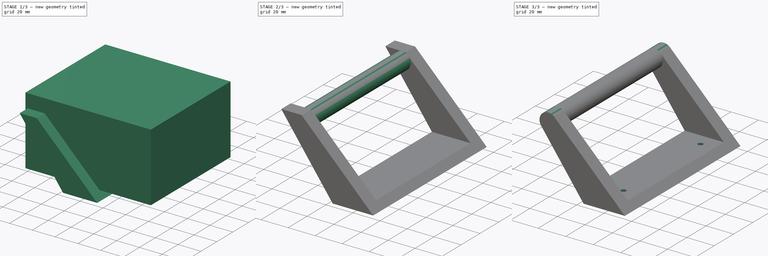
[diagram: build sequence overview — one tinted view per stage of 3, left to right]
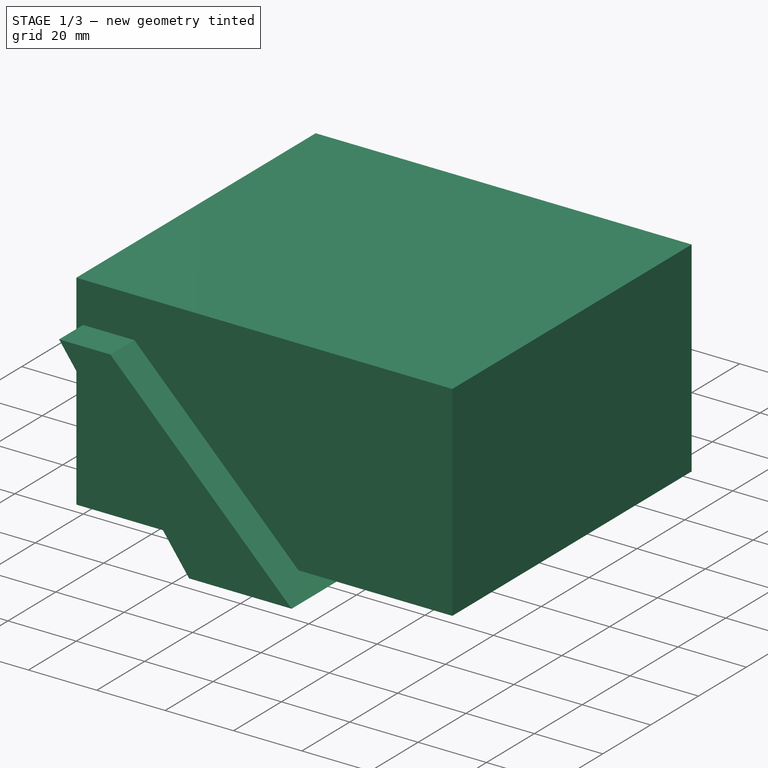
[diagram: stage 1 of 3 — iso view after this stage's code; geometry added in this stage tinted green]
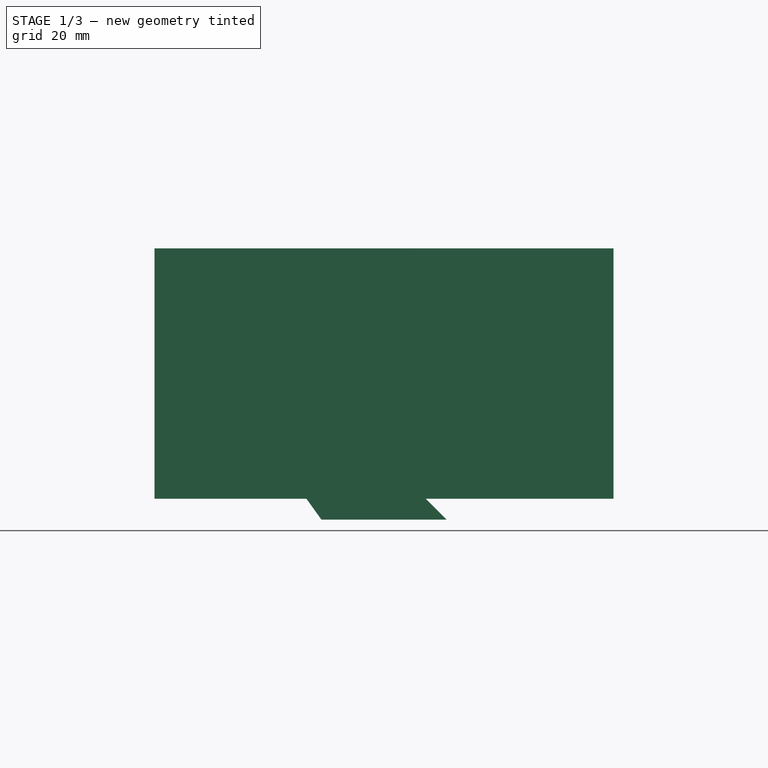
[diagram: stage 1 of 3 — front view after this stage's code; geometry added in this stage tinted green]
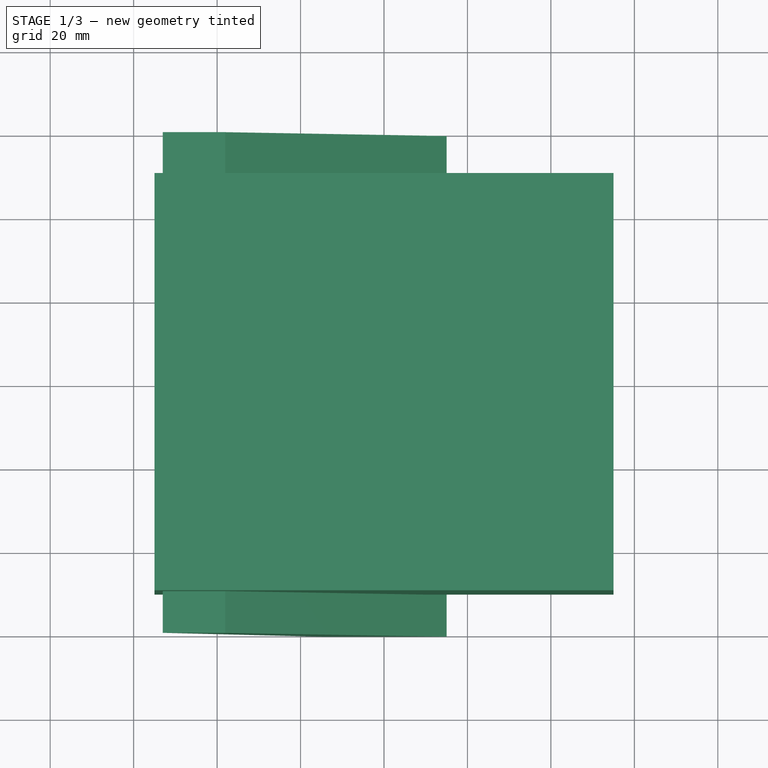
[diagram: stage 1 of 3 — top view after this stage's code; geometry added in this stage tinted green]
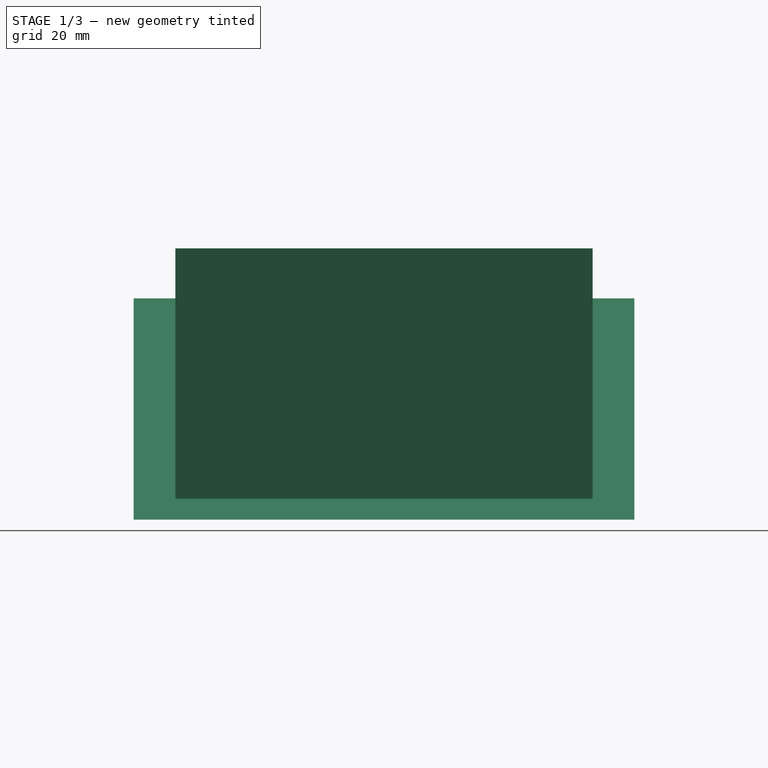
[diagram: stage 1 of 3 — right view after this stage's code; geometry added in this stage tinted green]
FCSTD DOCUMENT  (FreeCAD 0.16R6138 (Git))
Label: poignee
License: CreativeCommons Attribution
LicenseURL: http://creativecommons.org/licenses/by/4.0/
objects: Sketcher::SketchObject×5, PartDesign::Pad×3, PartDesign::Pocket×2, Part::Cut×1
note: 16 computed .brp shape members not serialized (recipe doc carries the construction recipe); baked Part::Feature solids carry a one-line shape summary decoded from their .brp

FEATURE [Sketcher::SketchObject] Sketch
  Placement = pos=(0,0,0) rot=(-1,0,0;4.71239rad)
  sketch-geometry (4):
    g0: LineSegment StartX=-15 StartY=0 StartZ=0 EndX=-53.033 EndY=53.033 EndZ=0
    g1: LineSegment StartX=-53.033 StartY=53.033 StartZ=0 EndX=-38.033 EndY=53.033 EndZ=0
    g2: LineSegment StartX=-38.033 StartY=53.033 StartZ=0 EndX=15 EndY=0 EndZ=0
    g3: LineSegment StartX=15 StartY=0 StartZ=0 EndX=-15 EndY=0 EndZ=0
  constraints (12):
    c: Coincident(g0,g1)
    c: Horizontal(g1)
    c: Coincident(g1,g2)
    c: Coincident(g2,g3)
    c: Coincident(g3,g0)
    c: Horizontal(g3)
    c: Distance(g1) = 15
    c: Symmetric(g0,g2,g-2)
    c: Distance(g3) = 30
    c: PointOnObject(g0,g-1)
    c: Distance(g2) = 75
    c: Angle(g2,g-1) = 0.785398
FEATURE [PartDesign::Pad] Pad
  Length = 120
  Length2 = 100
  Midplane = true
  Placement = pos=(0,0,0) rot=(-1,0,0;4.71239rad)
  Sketch = -> Sketch
  Type = 0
FEATURE [Sketcher::SketchObject] Sketch001
  Placement = pos=(0,0,0) rot=(0.57735,0.57735,0.57735;2.0944rad)
  sketch-geometry (4):
    g0: LineSegment StartX=-50 StartY=65 StartZ=0 EndX=50 EndY=65 EndZ=0
    g1: LineSegment StartX=50 StartY=65 StartZ=0 EndX=50 EndY=5 EndZ=0
    g2: LineSegment StartX=50 StartY=5 StartZ=0 EndX=-50 EndY=5 EndZ=0
    g3: LineSegment StartX=-50 StartY=5 StartZ=0 EndX=-50 EndY=65 EndZ=0
  constraints (12):
    c: Coincident(g0,g1)
    c: Coincident(g1,g2)
    c: Coincident(g2,g3)
    c: Coincident(g3,g0)
    c: Horizontal(g0)
    c: Horizontal(g2)
    c: Vertical(g1)
    c: Vertical(g3)
    c: Symmetric(g2,g1,g-2)
    c: DistanceY(g-1,g1) = 5
    c: Distance(g0) = 100
    c: Distance(g1) = 60
FEATURE [PartDesign::Pad] Pad001
  Length = 110
  Length2 = 100
  Midplane = true
  Placement = pos=(0,0,0) rot=(0.57735,0.57735,0.57735;2.0944rad)
  Sketch = -> Sketch001
  Type = 0
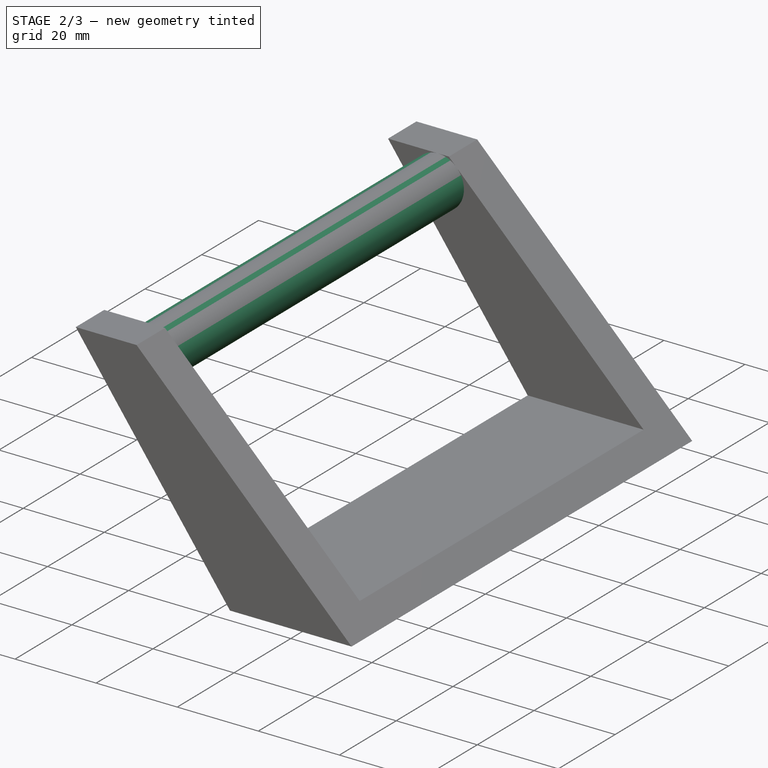
[diagram: stage 2 of 3 — iso view after this stage's code; geometry added in this stage tinted green]
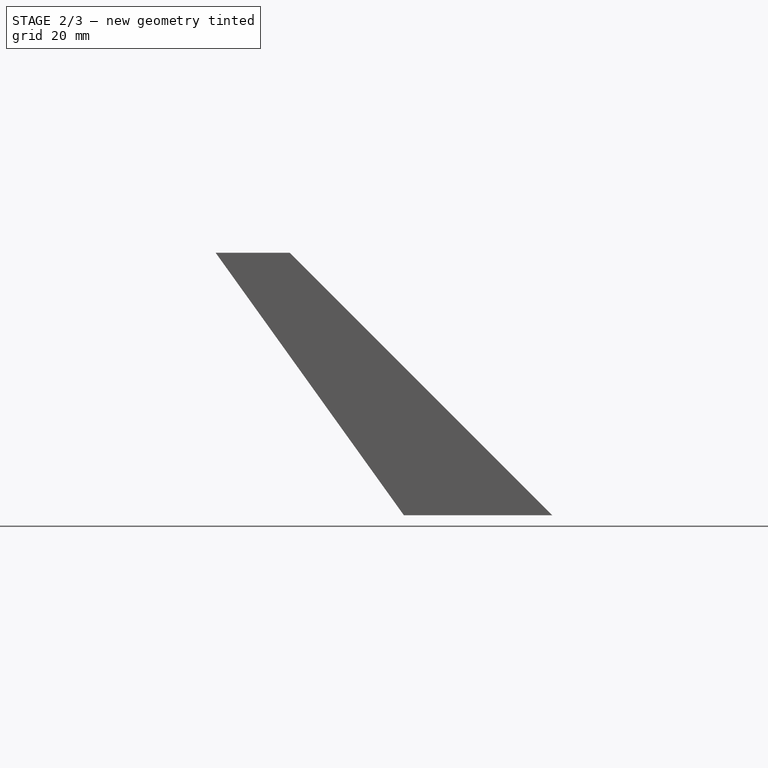
[diagram: stage 2 of 3 — front view after this stage's code; geometry added in this stage tinted green]
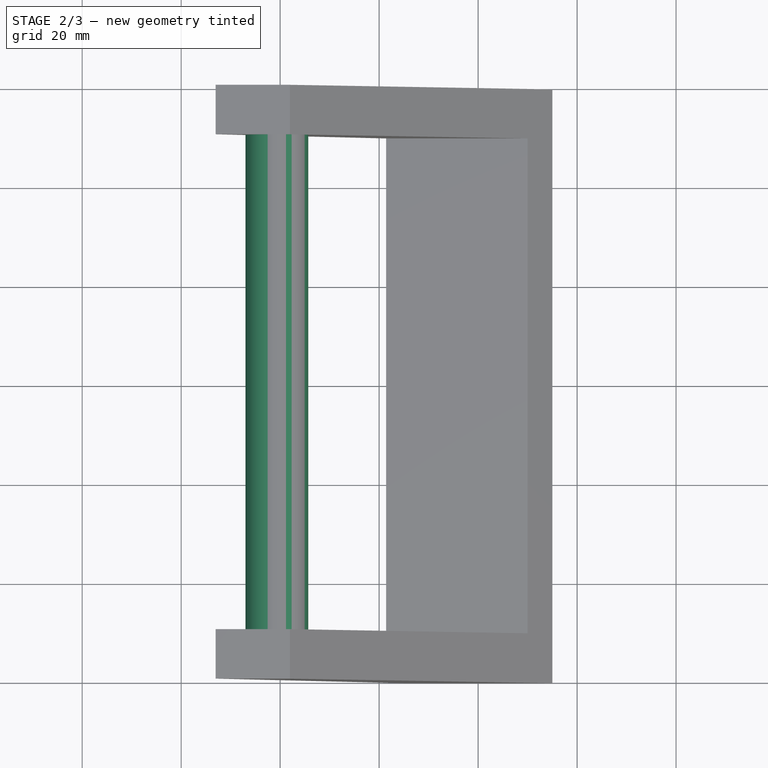
[diagram: stage 2 of 3 — top view after this stage's code; geometry added in this stage tinted green]
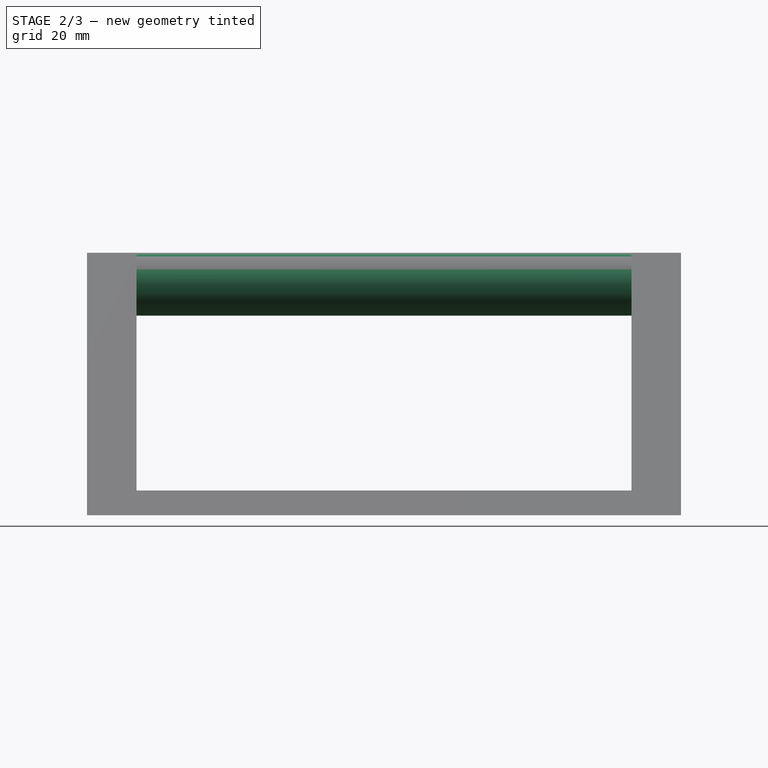
[diagram: stage 2 of 3 — right view after this stage's code; geometry added in this stage tinted green]
FEATURE [Part::Cut] Cut
  Base = -> Pad
  Tool = -> Pad001
FEATURE [Sketcher::SketchObject] Sketch002
  ExternalGeometry = -> [Cut]
  Placement = pos=(0,-60,0) rot=(1,0,0;1.5708rad)
  Support = -> Cut [Face8]
  sketch-geometry (1):
    g0: Circle CenterX=-40.6636 CenterY=46.6823 CenterZ=0 NormalX=0 NormalY=0 NormalZ=1 Radius=6.3507
  constraints (3):
    c: Tangent(g0,g-3)
    c: Tangent(g0,g-4)
    c: Tangent(g0,g-5)
FEATURE [PartDesign::Pad] Pad002
  Length = 120
  Length2 = 100
  Reversed = true
  Sketch = -> Sketch002
  Type = 0
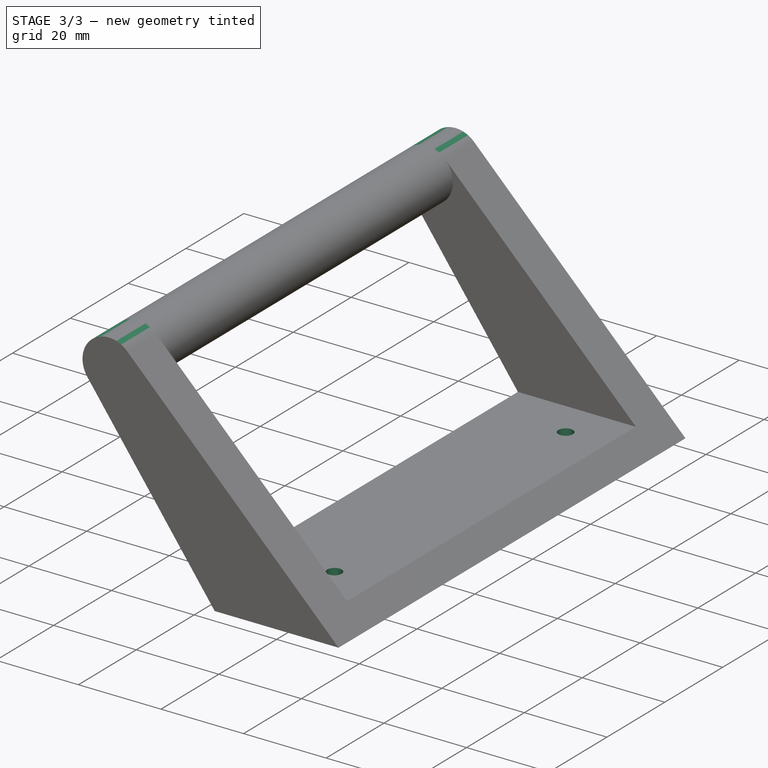
[diagram: stage 3 of 3 — iso view after this stage's code; geometry added in this stage tinted green]
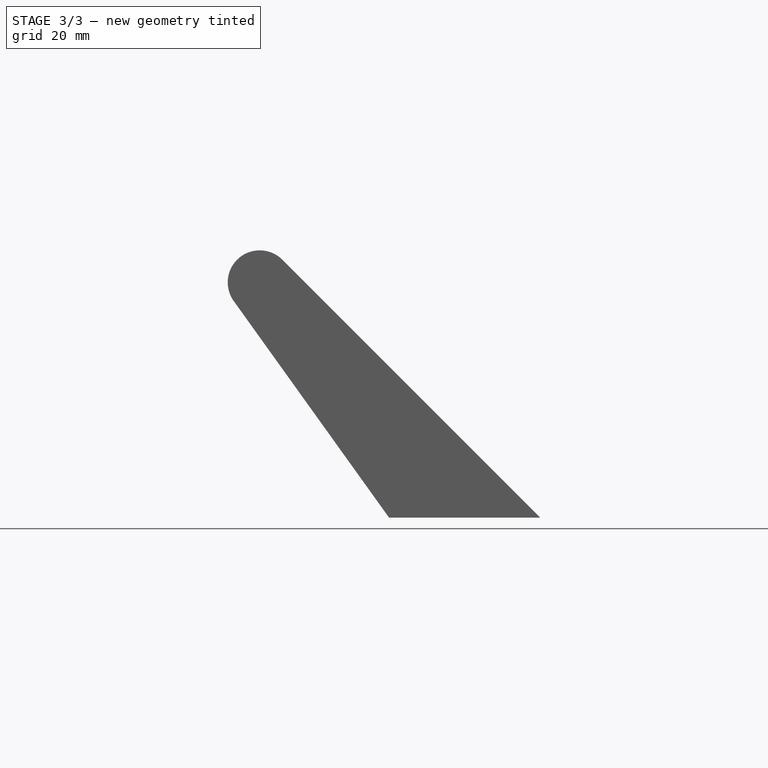
[diagram: stage 3 of 3 — front view after this stage's code; geometry added in this stage tinted green]
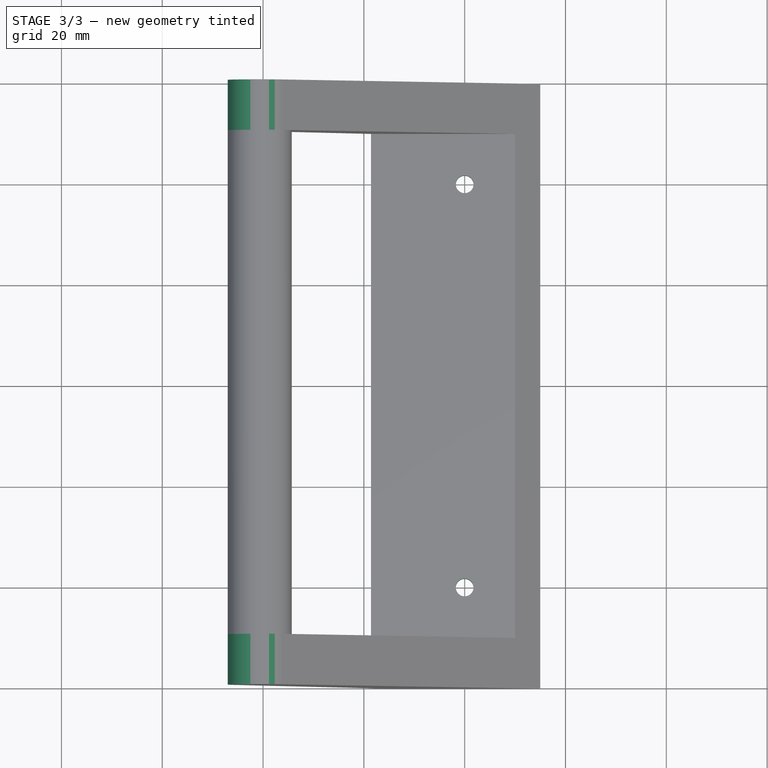
[diagram: stage 3 of 3 — top view after this stage's code; geometry added in this stage tinted green]
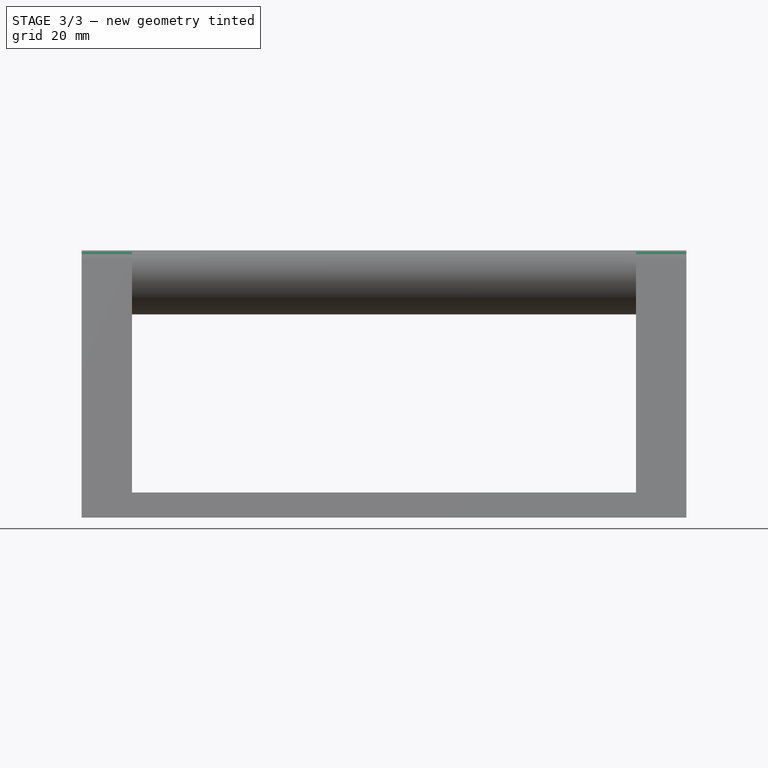
[diagram: stage 3 of 3 — right view after this stage's code; geometry added in this stage tinted green]
FEATURE [Sketcher::SketchObject] Sketch003
  Placement = pos=(0,-60,0) rot=(1,0,0;1.5708rad)
  Support = -> Pad002 [Face20]
  sketch-geometry (6):
    g0: ArcOfCircle CenterX=-40.6636 CenterY=46.6823 CenterZ=0 NormalX=0 NormalY=0 NormalZ=1 Radius=6.3507 StartAngle=1.57078 EndAngle=3.68284
    g1: LineSegment StartX=-36.1095 StartY=51.1086 StartZ=0 EndX=-36.1095 EndY=55.4104 EndZ=0
    g2: LineSegment StartX=-36.1095 StartY=55.4104 StartZ=0 EndX=-56.1095 EndY=55.4104 EndZ=0
    g3: LineSegment StartX=-56.1095 StartY=55.4104 StartZ=0 EndX=-56.1095 EndY=43.4104 EndZ=0
    g4: LineSegment StartX=-56.1095 StartY=43.4104 StartZ=0 EndX=-46.1065 EndY=43.4104 EndZ=0
    g5: ArcOfCircle CenterX=-40.6636 CenterY=46.6823 CenterZ=0 NormalX=0 NormalY=0 NormalZ=1 Radius=6.3507 StartAngle=0.771162 EndAngle=1.57078
  constraints (19):
    c: Vertical(g1)
    c: Coincident(g1,g2)
    c: Horizontal(g2)
    c: Coincident(g2,g3)
    c: Vertical(g3)
    c: Coincident(g3,g4)
    c: Horizontal(g4)
    c: DistanceX(g0) = -40.6636
    c: DistanceY(g0) = 46.6823
    c: Radius(g0) = 6.3507
    c: Coincident(g4,g0)
    c: Coincident(g5,g0)
    c: Coincident(g5,g0)
    c: Coincident(g1,g5)
    c: Distance(g2) = 20
    c: Distance(g3) = 12
    c: DistanceX(g0) = -46.1065
    c: DistanceX(g1) = -36.1095
    c: Radius(g5) = 6.3507
FEATURE [PartDesign::Pocket] Pocket
  Length = 5
  Sketch = -> Sketch003
  Type = 1
FEATURE [Sketcher::SketchObject] Sketch004
  ExternalGeometry = -> [Pocket]
  Placement = pos=(0,0,0) rot=(1,0,0;3.14159rad)
  Support = -> Pocket [Face10]
  sketch-geometry (3):
    g0: LineSegment [constr] StartX=0 StartY=40 StartZ=0 EndX=0 EndY=-40 EndZ=0
    g1: Circle CenterX=0 CenterY=40 CenterZ=0 NormalX=0 NormalY=0 NormalZ=1 Radius=1.75
    g2: Circle CenterX=0 CenterY=-40 CenterZ=0 NormalX=0 NormalY=0 NormalZ=1 Radius=1.75
  constraints (8):
    c: Vertical(g0)
    c: Symmetric(g0,g0,g-1)
    c: Distance(g0,g-3) = 15
    c: Distance(g0) = 80
    c: Coincident(g1,g0)
    c: Coincident(g2,g0)
    c: Radius(g2) = 1.75
    c: Equal(g2,g1)
FEATURE [PartDesign::Pocket] Pocket001  label="Poignee"
  Length = 10
  Sketch = -> Sketch004
  Type = 0
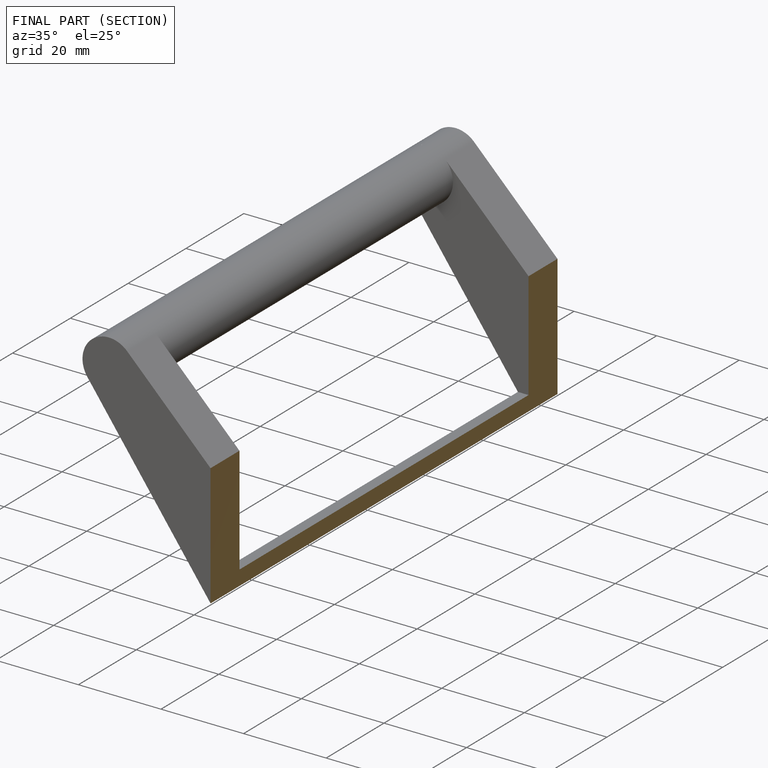
[diagram: finished part — half-section view (interior)]
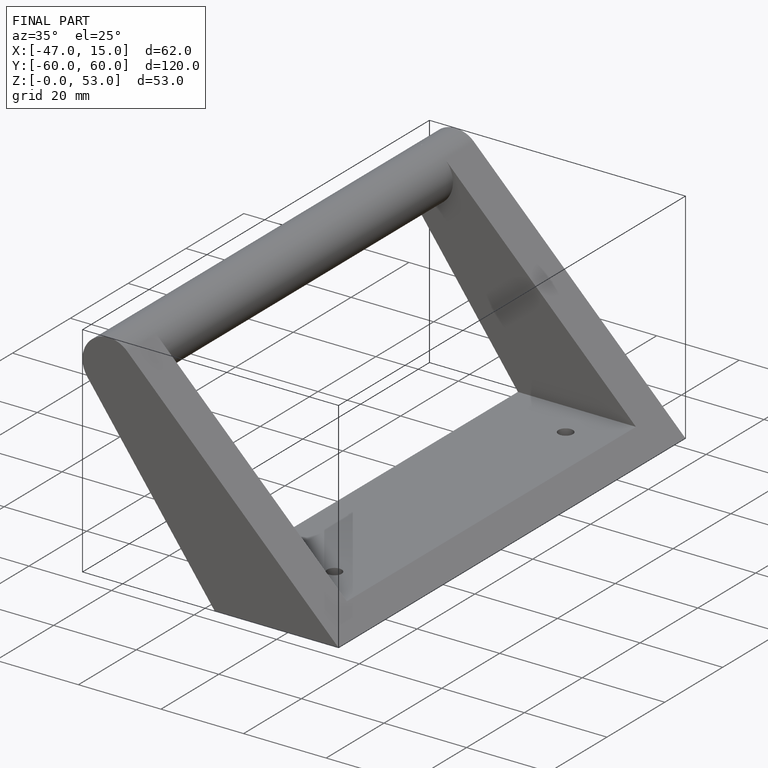
[diagram: finished part — iso view with bounding-box wireframe]
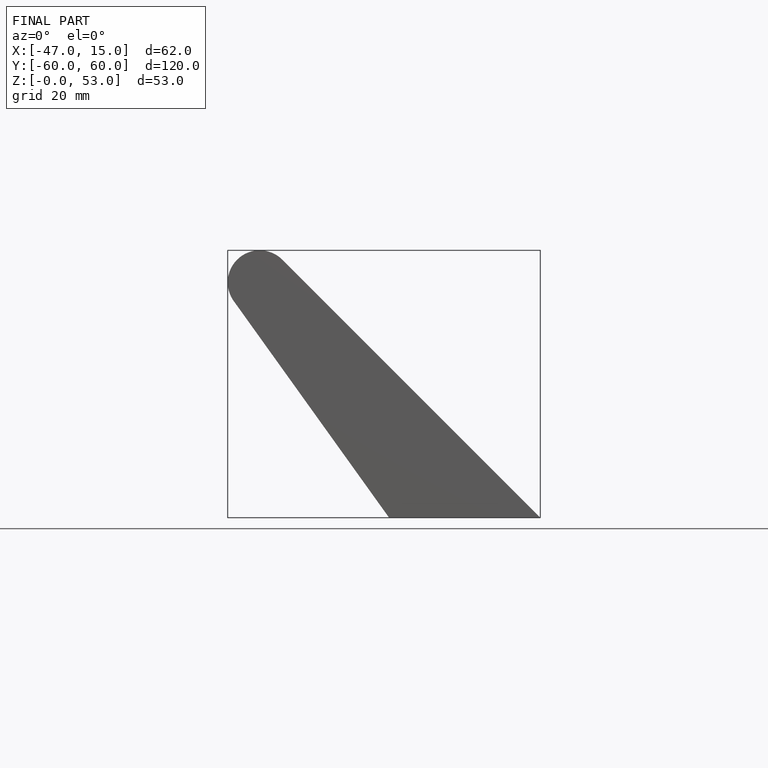
[diagram: finished part — front view with bounding-box wireframe]
